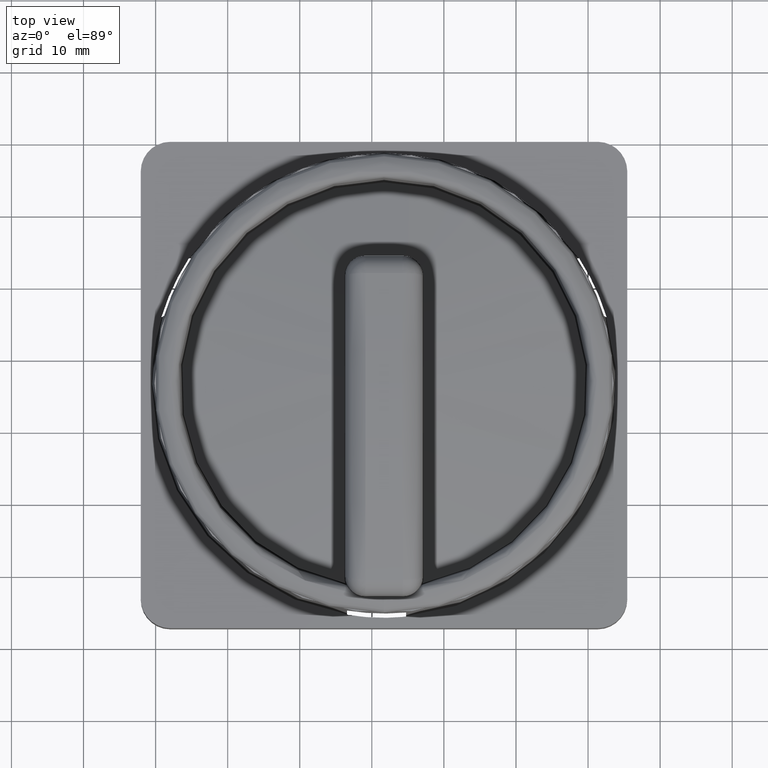
[diagram: clean part render]
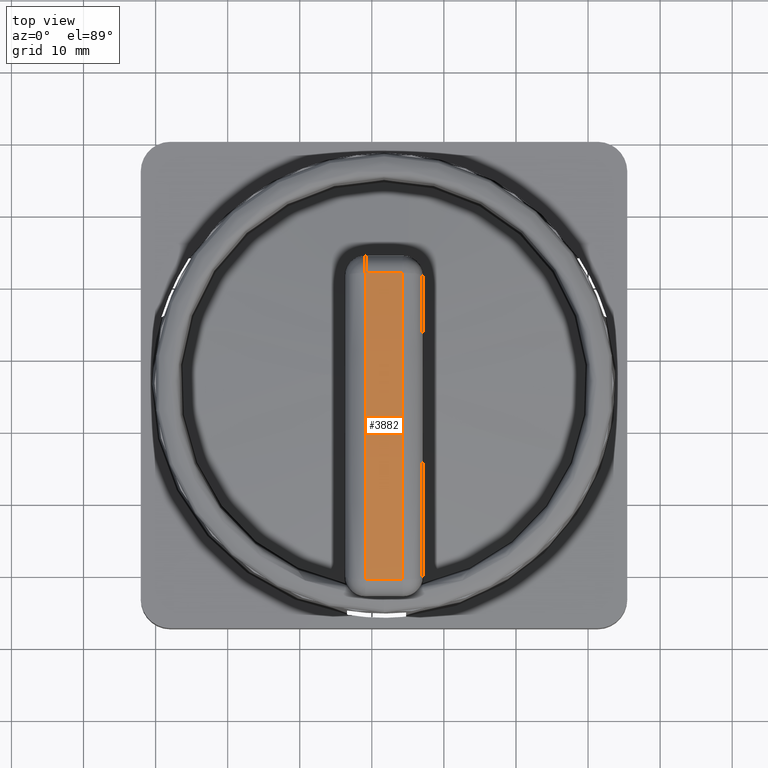
[diagram: same view with one face highlighted and labeled with its STEP entity id]
A machine part, top view. The second image highlights one B-rep face of the part: STEP entity #3882.
In plain terms, the highlighted cylindrical surface (partial cylindrical patch) has radius 145 mm, axis along (-1, 0, 0).
Its self-contained STEP definition (entity closure, byte-faithful):
#3740=CARTESIAN_POINT('',(109.10876659129002,131.63365311274399,83.483206870355517));
#3741=VERTEX_POINT('',#3740);
#3749=CARTESIAN_POINT('',(114.26738188500198,131.63365311274399,83.483206870355517));
#3750=VERTEX_POINT('',#3749);
#3751=CARTESIAN_POINT('',(114.26738188500198,131.63365311274399,83.483206870355517));
#3752=DIRECTION('',(-1.0,0.0,0.0));
#3753=VECTOR('',#3752,5.158615293711961);
#3754=LINE('',#3751,#3753);
#3755=EDGE_CURVE('',#3750,#3741,#3754,.T.);
#3831=CARTESIAN_POINT('',(114.27675281258601,89.133284592658001,82.265315666837722));
#3832=VERTEX_POINT('',#3831);
#3833=CARTESIAN_POINT('',(109.09939566370699,89.133284592658001,82.265315666837722));
#3834=VERTEX_POINT('',#3833);
#3835=CARTESIAN_POINT('',(114.27675281258601,89.133284592658001,82.265315666837722));
#3836=DIRECTION('',(-1.0,0.0,0.0));
#3837=VECTOR('',#3836,5.177357148879025);
#3838=LINE('',#3835,#3837);
#3839=EDGE_CURVE('',#3832,#3834,#3838,.T.);
#3859=CARTESIAN_POINT('',(119.68807423814603,114.49200385345898,-60.500000000000298));
#3860=DIRECTION('',(-1.0,0.0,0.0));
#3861=DIRECTION('',(0.0,0.0,1.0));
#3862=AXIS2_PLACEMENT_3D('',#3859,#3860,#3861);
#3863=CYLINDRICAL_SURFACE('',#3862,145.0);
#3864=ORIENTED_EDGE('',*,*,#3755,.T.);
#3865=CARTESIAN_POINT('',(108.00090391773701,114.49200385345898,-60.500000000000298));
#3866=DIRECTION('',(0.999970399510218,0.0,-0.007694160342411));
#3867=DIRECTION('',(-0.007694160342411,0.0,-0.999970399510218));
#3868=AXIS2_PLACEMENT_3D('',#3865,#3866,#3867);
#3869=ELLIPSE('',#3868,145.00429219807003,145.00000000000006);
#3870=EDGE_CURVE('',#3741,#3834,#3869,.T.);
#3871=ORIENTED_EDGE('',*,*,#3870,.T.);
#3872=ORIENTED_EDGE('',*,*,#3839,.F.);
#3873=CARTESIAN_POINT('',(115.37524455855502,114.49200385345898,-60.500000000000298));
#3874=DIRECTION('',(-0.999970399510218,0.0,-0.007694160342411));
#3875=DIRECTION('',(-0.007694160342411,0.0,0.999970399510218));
#3876=AXIS2_PLACEMENT_3D('',#3873,#3874,#3875);
#3877=ELLIPSE('',#3876,145.00429219807003,145.00000000000006);
#3878=EDGE_CURVE('',#3832,#3750,#3877,.T.);
#3879=ORIENTED_EDGE('',*,*,#3878,.T.);
#3880=EDGE_LOOP('',(#3864,#3871,#3872,#3879));
#3881=FACE_OUTER_BOUND('',#3880,.T.);
#3882=ADVANCED_FACE('',(#3881),#3863,.T.);